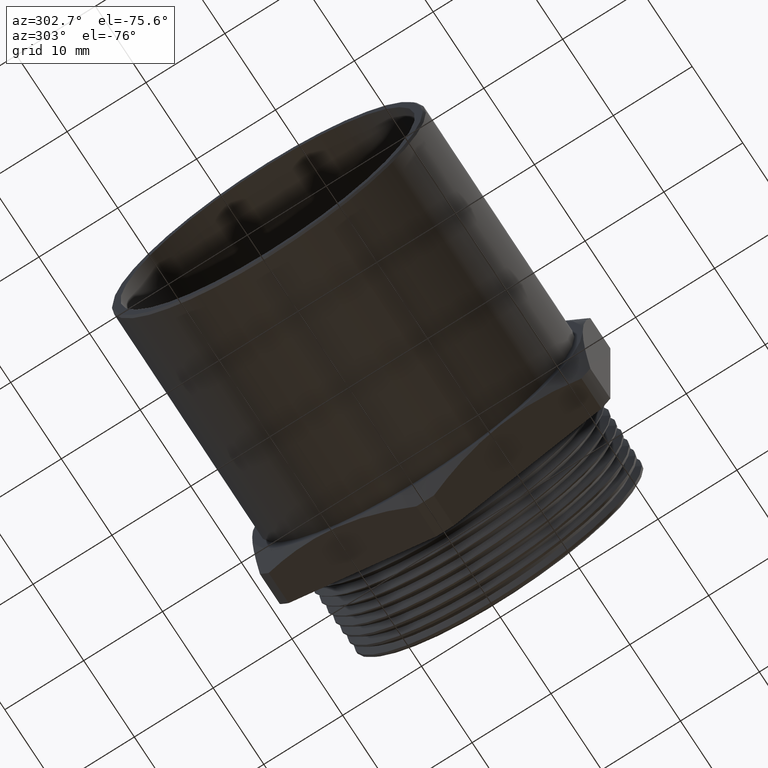
[diagram: clean part render]
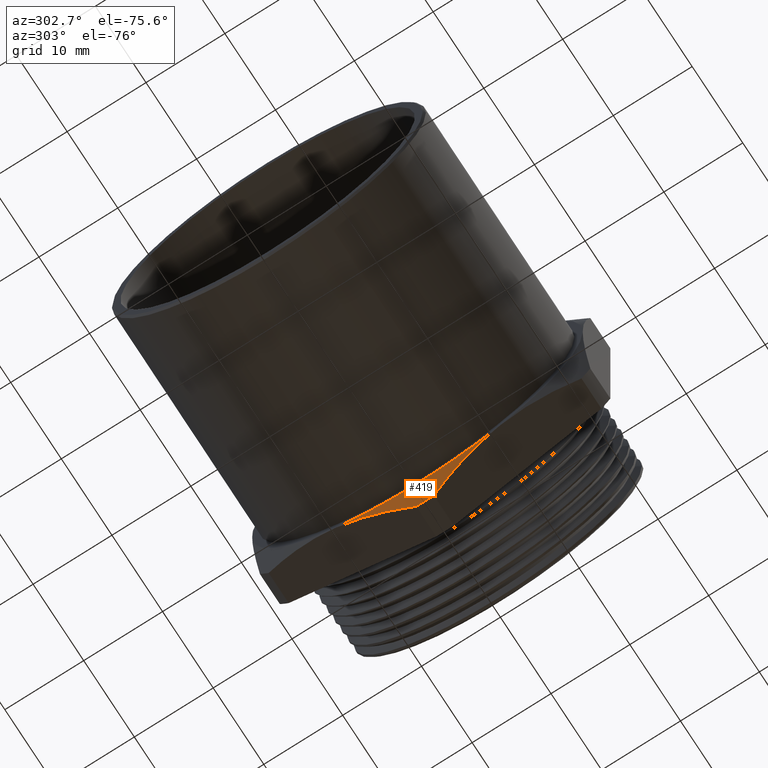
[diagram: same view with one face highlighted and labeled with its STEP entity id]
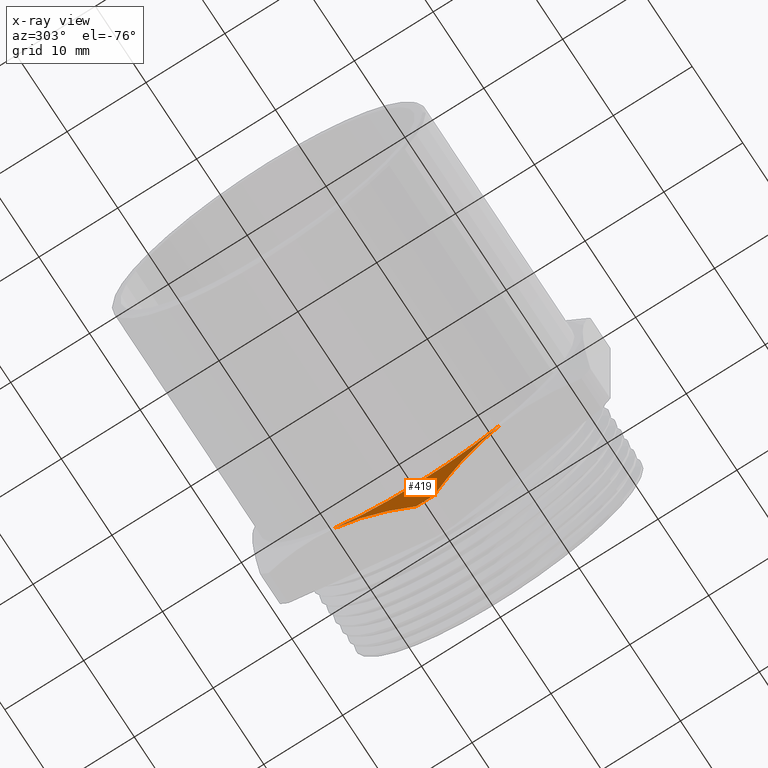
[diagram: x-ray of the same camera — body ghosted, the highlighted face saturated]
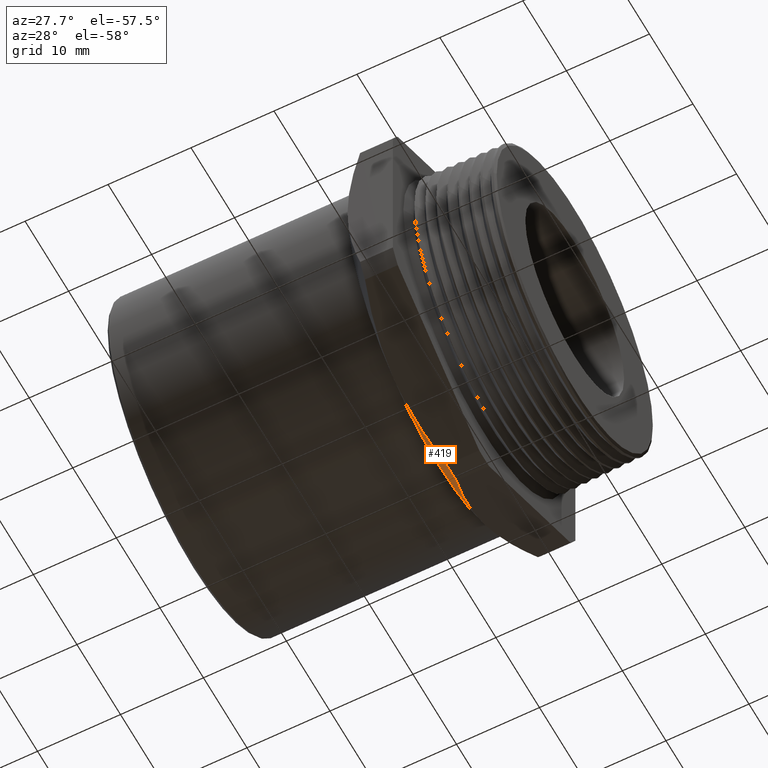
[diagram: same view with one face highlighted and labeled with its STEP entity id]
A machine part, auxiliary view. The second image highlights one B-rep face of the part: STEP entity #419.
The next image is the same camera in x-ray: the body ghosted, the highlighted face saturated — about 0% of this face is hidden behind the body in this view.
A second angle (auxiliary view) of the same face is appended — the face is thin or edge-on in the first view.
In plain terms, the highlighted conical surface has half-angle 60 deg.
Its self-contained STEP definition (entity closure, byte-faithful):
#259 = EDGE_CURVE ( 'NONE', #260, #261, #1419, .T. ) ;
#260 = VERTEX_POINT ( 'NONE', #1414 ) ;
#261 = VERTEX_POINT ( 'NONE', #1413 ) ;
#352 = EDGE_CURVE ( 'NONE', #358, #260, #1622, .T. ) ;
#358 = VERTEX_POINT ( 'NONE', #1668 ) ;
#366 = EDGE_CURVE ( 'NONE', #358, #367, #1643, .T. ) ;
#367 = VERTEX_POINT ( 'NONE', #1703 ) ;
#376 = EDGE_CURVE ( 'NONE', #261, #367, #1686, .T. ) ;
#419 = ADVANCED_FACE ( 'NONE', ( #1762 ), #1757, .T. ) ;
#420 = EDGE_LOOP ( 'NONE', ( #421, #422, #423, #424 ) ) ;
#421 = ORIENTED_EDGE ( 'NONE', *, *, #376, .T. ) ;
#422 = ORIENTED_EDGE ( 'NONE', *, *, #366, .F. ) ;
#423 = ORIENTED_EDGE ( 'NONE', *, *, #352, .T. ) ;
#424 = ORIENTED_EDGE ( 'NONE', *, *, #259, .T. ) ;
#1413 = CARTESIAN_POINT ( 'NONE',  ( -0.5854607534898198500, -0.04427009665325942100, -0.9270685919430726700 ) ) ;
#1414 = CARTESIAN_POINT ( 'NONE',  ( -0.5854607534898198500, 0.04427009665325976800, -0.9270685919430724500 ) ) ;
#1415 = DIRECTION ( 'NONE',  ( 0.0000000000000000000, 0.0000000000000000000, -1.000000000000000000 ) ) ;
#1416 = DIRECTION ( 'NONE',  ( -1.000000000000000000, 0.0000000000000000000, 0.0000000000000000000 ) ) ;
#1417 = CARTESIAN_POINT ( 'NONE',  ( -0.5854607534898198500, 0.0000000000000000000, 0.0000000000000000000 ) ) ;
#1418 = AXIS2_PLACEMENT_3D ( 'NONE', #1417, #1416, #1415 ) ;
#1419 = CIRCLE ( 'NONE', #1418, 0.9281250000000000900 ) ;
#1619 = CARTESIAN_POINT ( 'NONE',  ( -0.6436390970956265000, 0.3502984452849012800, -0.7503830424809374600 ) ) ;
#1620 = CARTESIAN_POINT ( 'NONE',  ( -0.6449999999999995700, 0.3815199429396150500, -0.7323573024054853600 ) ) ;
#1621 = CARTESIAN_POINT ( 'NONE',  ( -0.6449999999999998000, 0.4125000000000003100, -0.7144709581221619900 ) ) ;
#1622 = B_SPLINE_CURVE_WITH_KNOTS ( 'NONE', 3,
 ( #1621, #1620, #1619, #1675, #1674, #1673, #1672, #1671 ),
 .UNSPECIFIED., .F., .F.,
 ( 4, 2, 2, 4 ),
 ( 0.01090237020483316900, 0.01361026898522746000, 0.01631816776562175200, 0.02173396532641033700 ),
 .UNSPECIFIED. ) ;
#1641 = CARTESIAN_POINT ( 'NONE',  ( -0.6449999999999998000, 0.0000000000000000000, 0.0000000000000000000 ) ) ;
#1642 = AXIS2_PLACEMENT_3D ( 'NONE', #1641, #1705, #1704 ) ;
#1643 = CIRCLE ( 'NONE', #1642, 0.8249999999999998400 ) ;
#1668 = CARTESIAN_POINT ( 'NONE',  ( -0.6449999999999998000, 0.4125000000000003100, -0.7144709581221619900 ) ) ;
#1671 = CARTESIAN_POINT ( 'NONE',  ( -0.5854607534898198500, 0.04427009665325976800, -0.9270685919430724500 ) ) ;
#1672 = CARTESIAN_POINT ( 'NONE',  ( -0.6038603105968930500, 0.1045144957785560000, -0.8922864718909155900 ) ) ;
#1673 = CARTESIAN_POINT ( 'NONE',  ( -0.6188429183310509800, 0.1652445050721451900, -0.8572239846773733700 ) ) ;
#1674 = CARTESIAN_POINT ( 'NONE',  ( -0.6342995916867741900, 0.2573367952005720700, -0.8040544761814367700 ) ) ;
#1675 = CARTESIAN_POINT ( 'NONE',  ( -0.6382813262636999300, 0.2882005729773220400, -0.7862352657738210800 ) ) ;
#1677 = CARTESIAN_POINT ( 'NONE',  ( -0.6449999999999998000, -0.4125000000000000900, -0.7144709581221617700 ) ) ;
#1678 = CARTESIAN_POINT ( 'NONE',  ( -0.6449999999999998000, -0.3501363826548664600, -0.7504766093840136200 ) ) ;
#1679 = CARTESIAN_POINT ( 'NONE',  ( -0.6394823660492263700, -0.2883243318757908200, -0.7861638135404753800 ) ) ;
#1680 = CARTESIAN_POINT ( 'NONE',  ( -0.6189292951145004600, -0.1656516710950213800, -0.8569889072644604200 ) ) ;
#1681 = CARTESIAN_POINT ( 'NONE',  ( -0.6039432693024274800, -0.1047861217387704300, -0.8921296485696664800 ) ) ;
#1682 = CARTESIAN_POINT ( 'NONE',  ( -0.5854607534898198500, -0.04427009665325942100, -0.9270685919430726700 ) ) ;
#1686 = B_SPLINE_CURVE_WITH_KNOTS ( 'NONE', 3,
 ( #1682, #1681, #1680, #1679, #1678, #1677 ),
 .UNSPECIFIED., .F., .F.,
 ( 4, 2, 4 ),
 ( 2.364211090131403600E-007, 0.005451303312971098000, 0.01090237020483318300 ),
 .UNSPECIFIED. ) ;
#1703 = CARTESIAN_POINT ( 'NONE',  ( -0.6449999999999998000, -0.4125000000000000900, -0.7144709581221617700 ) ) ;
#1704 = DIRECTION ( 'NONE',  ( 0.0000000000000000000, 0.0000000000000000000, 1.000000000000000000 ) ) ;
#1705 = DIRECTION ( 'NONE',  ( -1.000000000000000000, 0.0000000000000000000, 0.0000000000000000000 ) ) ;
#1752 = DIRECTION ( 'NONE',  ( 0.0000000000000000000, 0.0000000000000000000, 1.000000000000000000 ) ) ;
#1753 = DIRECTION ( 'NONE',  ( 1.000000000000000000, 0.0000000000000000000, 0.0000000000000000000 ) ) ;
#1754 = CARTESIAN_POINT ( 'NONE',  ( -0.6449999999999998000, 0.0000000000000000000, 0.0000000000000000000 ) ) ;
#1755 = AXIS2_PLACEMENT_3D ( 'NONE', #1754, #1753, #1752 ) ;
#1757 = CONICAL_SURFACE ( 'NONE', #1755, 0.8249999999999998400, 1.047197551196600100 ) ;
#1762 = FACE_OUTER_BOUND ( 'NONE', #420, .T. ) ;